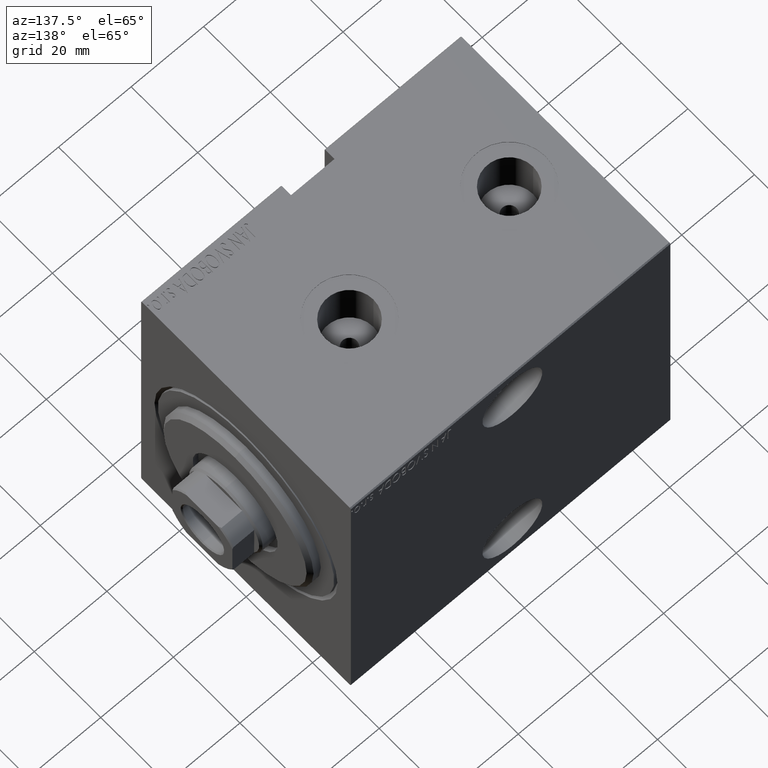
[diagram: clean part render]
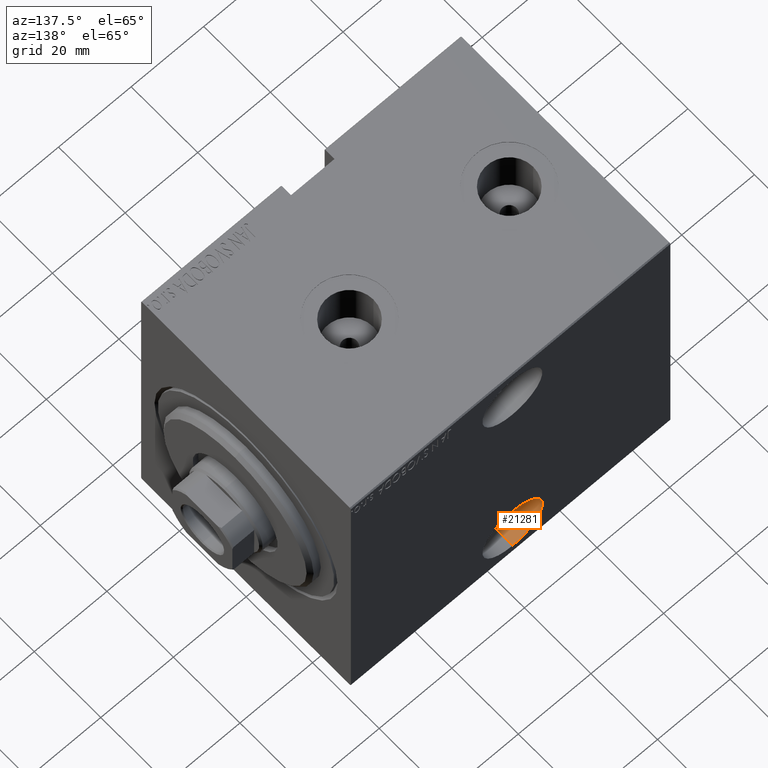
[diagram: same view with one face highlighted and labeled with its STEP entity id]
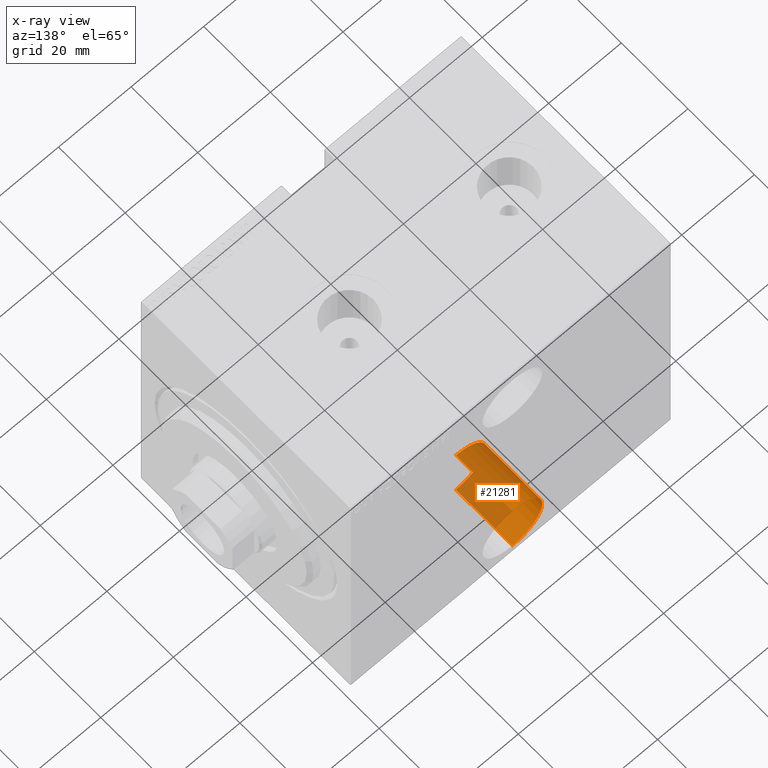
[diagram: x-ray of the same camera — body ghosted, the highlighted face saturated]
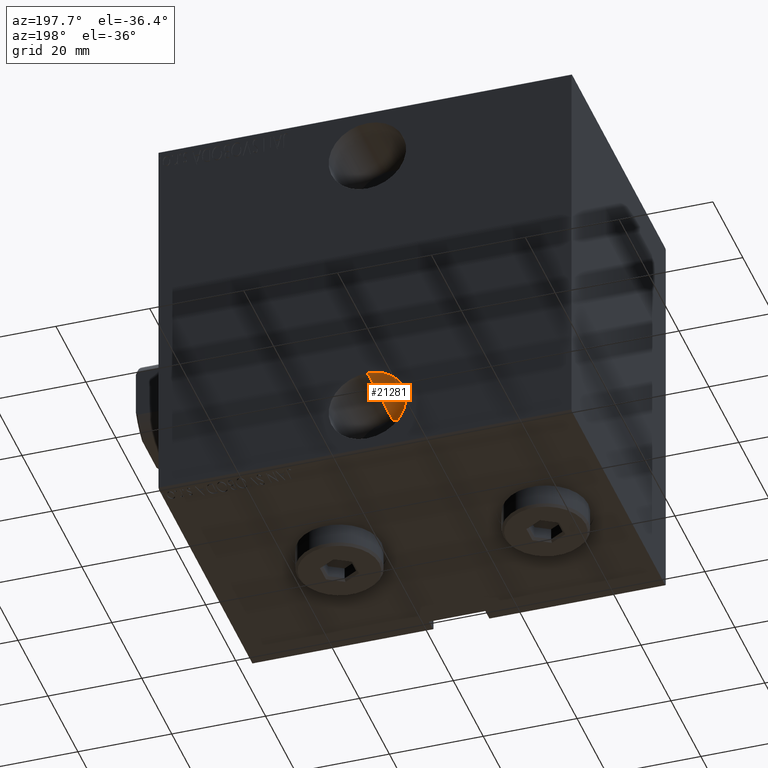
[diagram: same view with one face highlighted and labeled with its STEP entity id]
A machine part, auxiliary view. The second image highlights one B-rep face of the part: STEP entity #21281.
The next image is the same camera in x-ray: the body ghosted, the highlighted face saturated — about 63% of this face is hidden behind the body in this view.
A second angle (auxiliary view) of the same face is appended — the face is thin or edge-on in the first view.
In plain terms, the highlighted cylindrical surface (partial cylindrical patch) has radius 8.25 mm, axis along (0, 1, 0).
Its self-contained STEP definition (entity closure, byte-faithful):
#423 = LINE ( 'NONE', #14037, #1984 ) ;
#1604 = AXIS2_PLACEMENT_3D ( 'NONE', #27867, #4453, #38519 ) ;
#1701 = CYLINDRICAL_SURFACE ( 'NONE', #36262, 8.250000000000007105 ) ;
#1765 = CIRCLE ( 'NONE', #13175, 8.250000000000007105 ) ;
#1984 = VECTOR ( 'NONE', #34932, 1000.000000000000000 ) ;
#2065 = ORIENTED_EDGE ( 'NONE', *, *, #11976, .F. ) ;
#2789 = CARTESIAN_POINT ( 'NONE',  ( 44.50000000000002132, -14.50000000000000000, -39.75000000000000711 ) ) ;
#4453 = DIRECTION ( 'NONE',  ( 0.000000000000000000, -1.000000000000000000, 1.963837897332234442E-16 ) ) ;
#6196 = VERTEX_POINT ( 'NONE', #35828 ) ;
#7213 = ORIENTED_EDGE ( 'NONE', *, *, #16880, .F. ) ;
#8097 = DIRECTION ( 'NONE',  ( 0.000000000000000000, -1.000000000000000000, 1.963837897332234442E-16 ) ) ;
#8657 = EDGE_CURVE ( 'NONE', #18020, #6196, #12828, .T. ) ;
#9455 = CIRCLE ( 'NONE', #1604, 8.250000000000007105 ) ;
#11976 = EDGE_CURVE ( 'NONE', #18020, #35646, #9455, .T. ) ;
#12828 = LINE ( 'NONE', #16615, #37760 ) ;
#13175 = AXIS2_PLACEMENT_3D ( 'NONE', #35038, #8097, #32366 ) ;
#13548 = EDGE_LOOP ( 'NONE', ( #7213, #2065, #16330, #27818 ) ) ;
#14037 = CARTESIAN_POINT ( 'NONE',  ( 44.50000000000002132, -14.49999999999999645, -23.24999999999999645 ) ) ;
#15316 = CARTESIAN_POINT ( 'NONE',  ( 44.50000000000002132, -14.49999999999999822, -31.50000000000000000 ) ) ;
#15983 = FACE_OUTER_BOUND ( 'NONE', #13548, .T. ) ;
#16330 = ORIENTED_EDGE ( 'NONE', *, *, #8657, .T. ) ;
#16615 = CARTESIAN_POINT ( 'NONE',  ( 44.50000000000002132, -14.50000000000000000, -39.75000000000000711 ) ) ;
#16639 = DIRECTION ( 'NONE',  ( 0.000000000000000000, -2.102695122396127944E-16, -1.000000000000000000 ) ) ;
#16880 = EDGE_CURVE ( 'NONE', #35646, #20801, #423, .T. ) ;
#18020 = VERTEX_POINT ( 'NONE', #2789 ) ;
#20801 = VERTEX_POINT ( 'NONE', #40314 ) ;
#21281 = ADVANCED_FACE ( 'NONE', ( #15983 ), #1701, .F. ) ;
#23730 = DIRECTION ( 'NONE',  ( -0.000000000000000000, -1.000000000000000000, 1.963837897332234688E-16 ) ) ;
#27818 = ORIENTED_EDGE ( 'NONE', *, *, #40306, .T. ) ;
#27867 = CARTESIAN_POINT ( 'NONE',  ( 44.50000000000002132, -14.49999999999999822, -31.50000000000000000 ) ) ;
#28139 = CARTESIAN_POINT ( 'NONE',  ( 44.50000000000002132, -14.49999999999999645, -23.24999999999999645 ) ) ;
#28897 = DIRECTION ( 'NONE',  ( -0.000000000000000000, -1.000000000000000000, 1.963837897332234688E-16 ) ) ;
#32366 = DIRECTION ( 'NONE',  ( 0.000000000000000000, 0.000000000000000000, -1.000000000000000000 ) ) ;
#34932 = DIRECTION ( 'NONE',  ( -0.000000000000000000, -1.000000000000000000, 1.963837897332234688E-16 ) ) ;
#35038 = CARTESIAN_POINT ( 'NONE',  ( 44.50000000000002132, -31.50000000000000000, -31.50000000000000000 ) ) ;
#35646 = VERTEX_POINT ( 'NONE', #28139 ) ;
#35828 = CARTESIAN_POINT ( 'NONE',  ( 44.50000000000002132, -31.50000000000000000, -39.75000000000000711 ) ) ;
#36262 = AXIS2_PLACEMENT_3D ( 'NONE', #15316, #28897, #16639 ) ;
#37760 = VECTOR ( 'NONE', #23730, 1000.000000000000000 ) ;
#38519 = DIRECTION ( 'NONE',  ( 0.000000000000000000, -2.102695122396127944E-16, -1.000000000000000000 ) ) ;
#40306 = EDGE_CURVE ( 'NONE', #6196, #20801, #1765, .T. ) ;
#40314 = CARTESIAN_POINT ( 'NONE',  ( 44.50000000000002132, -31.50000000000000000, -23.24999999999999645 ) ) ;